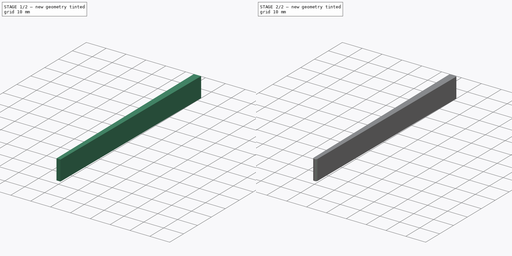
[diagram: build sequence overview — one tinted view per stage of 2, left to right]
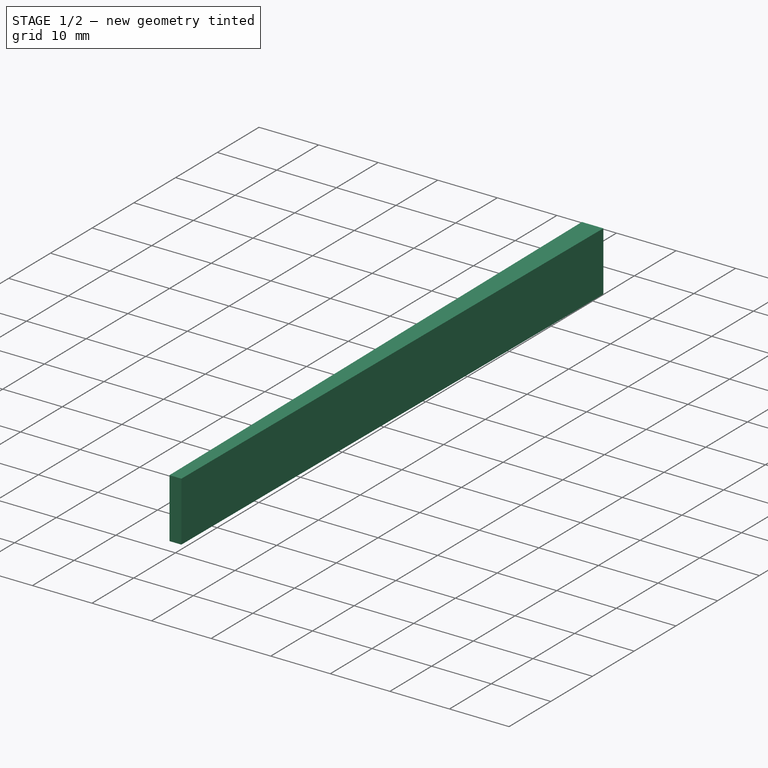
[diagram: stage 1 of 2 — iso view after this stage's code; geometry added in this stage tinted green]
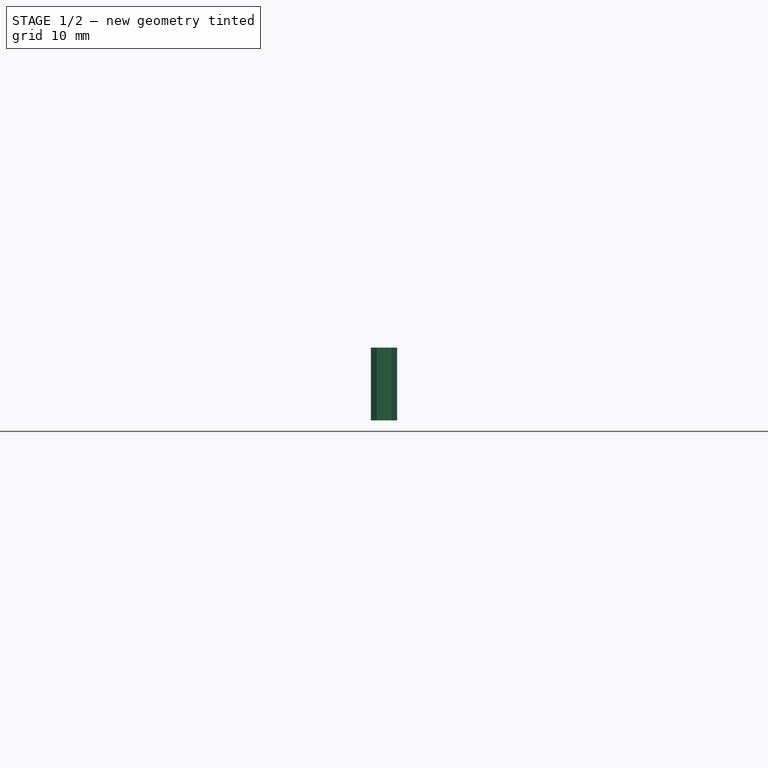
[diagram: stage 1 of 2 — front view after this stage's code; geometry added in this stage tinted green]
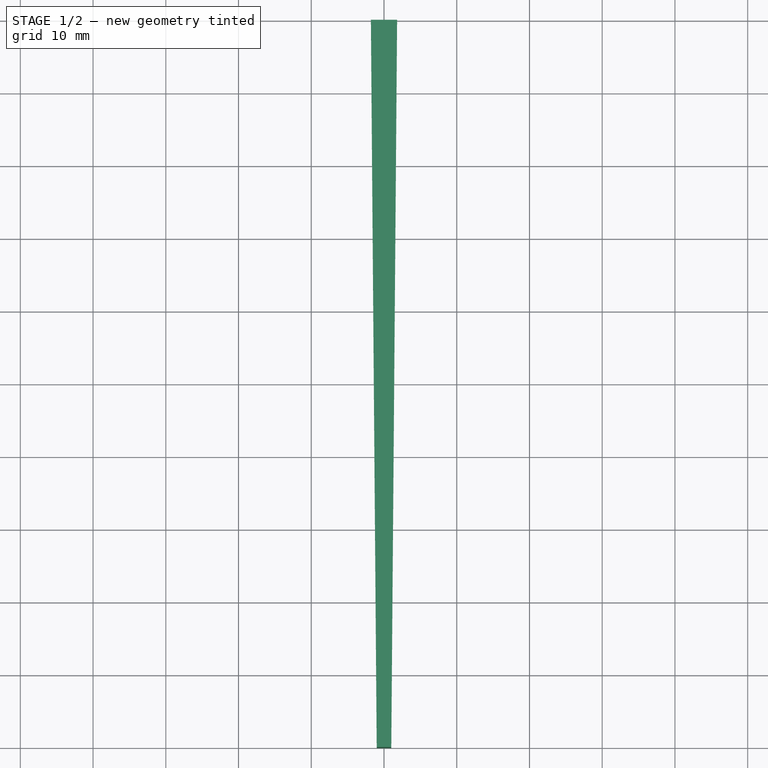
[diagram: stage 1 of 2 — top view after this stage's code; geometry added in this stage tinted green]
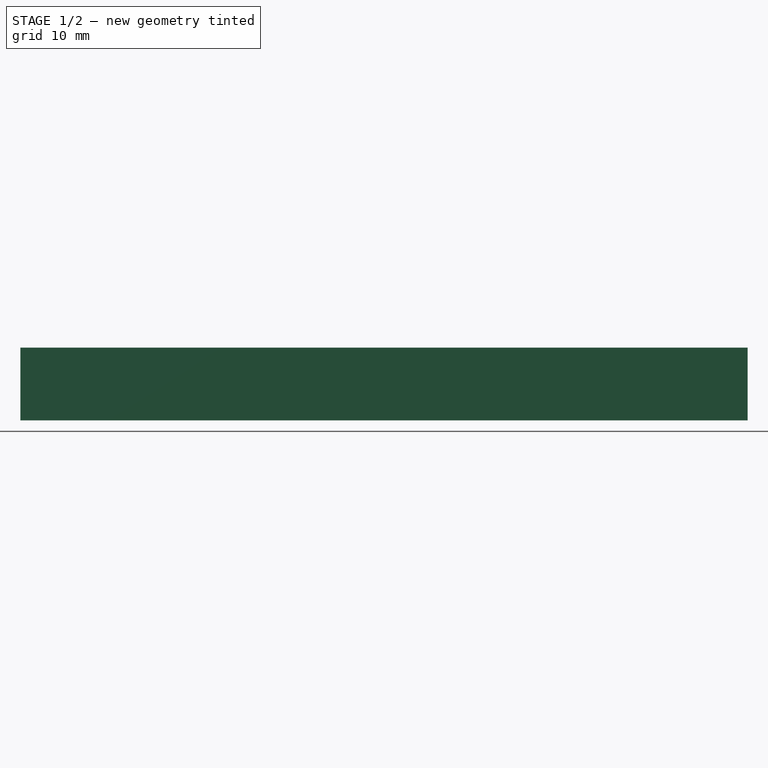
[diagram: stage 1 of 2 — right view after this stage's code; geometry added in this stage tinted green]
FCSTD DOCUMENT  (FreeCAD 0.18R)
Label: MicroSteppingTest
License: All rights reserved
LicenseURL: http://en.wikipedia.org/wiki/All_rights_reserved
objects: Sketcher::SketchObject×1, PartDesign::Pad×1, PartDesign::Fillet×1, PartDesign::Body×1, App::Part×1
note: 5 computed .brp shape members not serialized (recipe doc carries the construction recipe); baked Part::Feature solids carry a one-line shape summary decoded from their .brp

FEATURE [Sketcher::SketchObject] Sketch
  MapMode = 5
  Support = -> [XY_Plane001]
  expr: Constraints[4] = Constraints.TipWidth + 1.6mm
  sketch-geometry (4):
    g0: LineSegment StartX=-1 StartY=0 StartZ=0 EndX=-1.8 EndY=100 EndZ=0
    g1: LineSegment StartX=-1.8 StartY=100 StartZ=0 EndX=1.8 EndY=100 EndZ=0
    g2: LineSegment StartX=1.8 StartY=100 StartZ=0 EndX=1 EndY=0 EndZ=0
    g3: LineSegment StartX=-1 StartY=0 StartZ=0 EndX=1 EndY=0 EndZ=0
  constraints (10):
    c: Coincident(g0,g1)
    c: Coincident(g1,g2)
    c: Symmetric(g0,g1,g-2)
    c: DistanceY(g0,g0) = 100
    c: DistanceX(g1,g1) = 3.6
    c: Coincident(g3,g0)
    c: Coincident(g3,g2)
    c: Horizontal(g3)
    c: DistanceX(g3,g3) = 2  'TipWidth'
    c: Symmetric(g0,g2,g-1)
FEATURE [PartDesign::Pad] Pad
  Length = 10
  Length2 = 100
  Profile = -> Sketch
  Type = 0
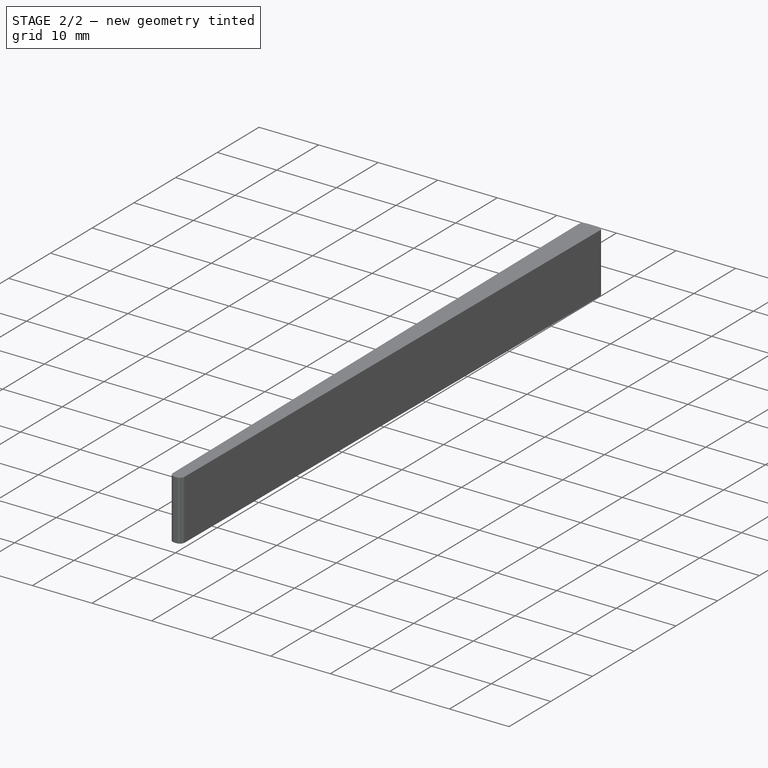
[diagram: stage 2 of 2 — iso view after this stage's code; geometry added in this stage tinted green]
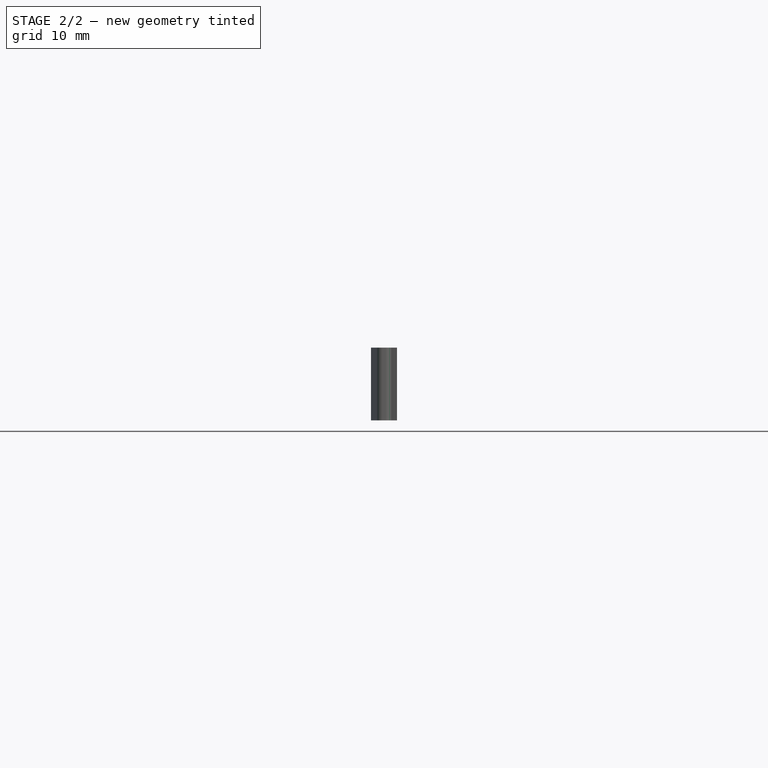
[diagram: stage 2 of 2 — front view after this stage's code; geometry added in this stage tinted green]
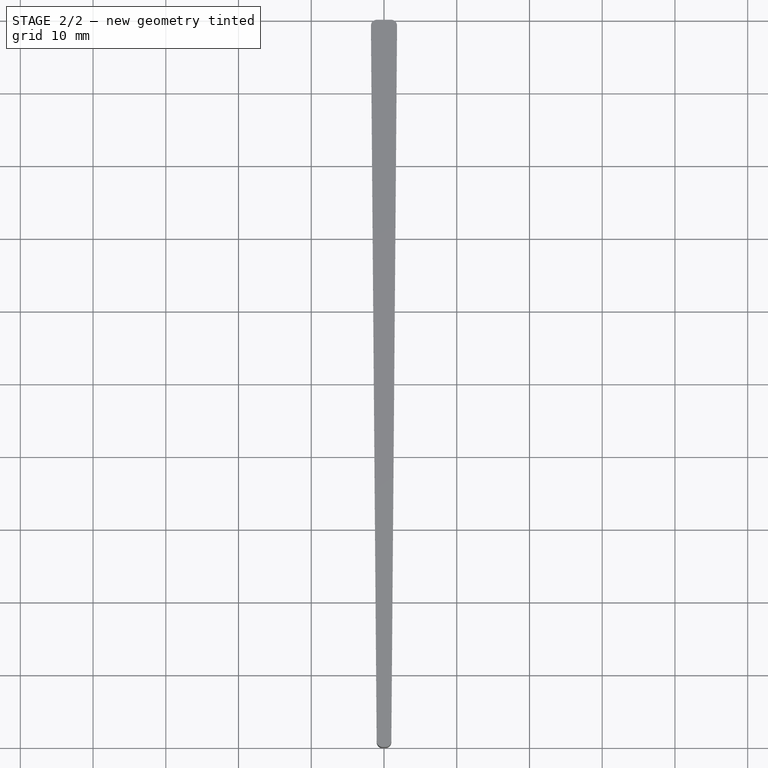
[diagram: stage 2 of 2 — top view after this stage's code; geometry added in this stage tinted green]
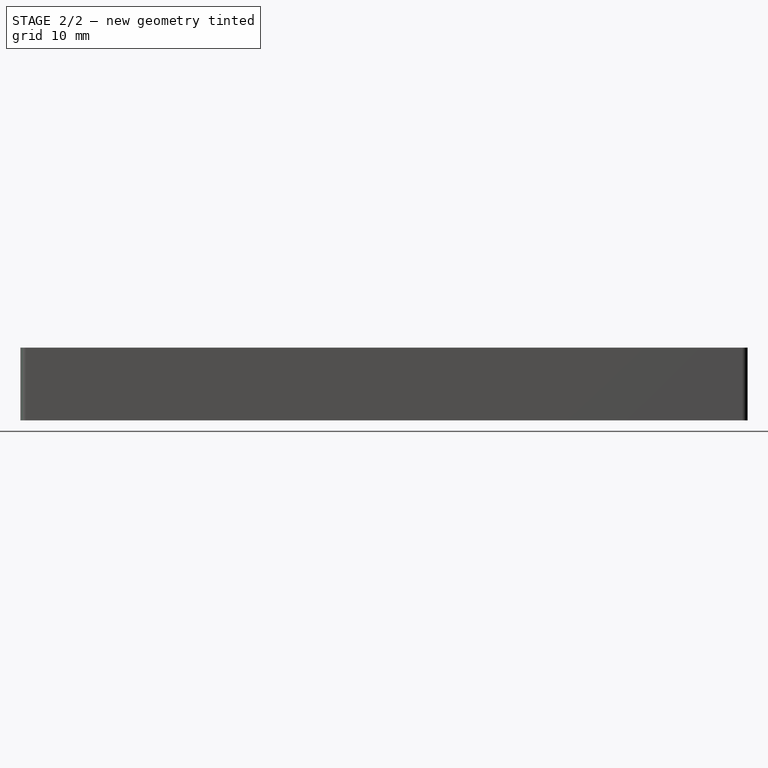
[diagram: stage 2 of 2 — right view after this stage's code; geometry added in this stage tinted green]
FEATURE [PartDesign::Fillet] Fillet
  Base = -> Pad [Edge2,Edge5,Edge1,Edge8]
  BaseFeature = -> Pad
  Radius = 0.8
FEATURE [PartDesign::Body] Body
  Group = -> [Sketch,Pad,Fillet]
  Origin = -> Origin001
  Tip = -> Fillet
FEATURE [App::Part] Part
  Group = -> [Body]
  Origin = -> Origin
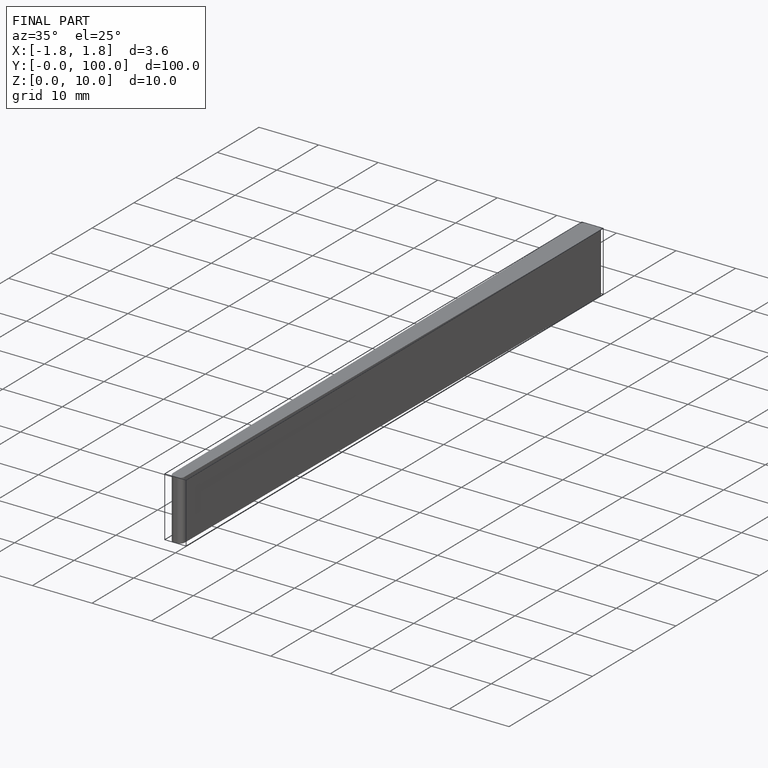
[diagram: finished part — iso view with bounding-box wireframe]
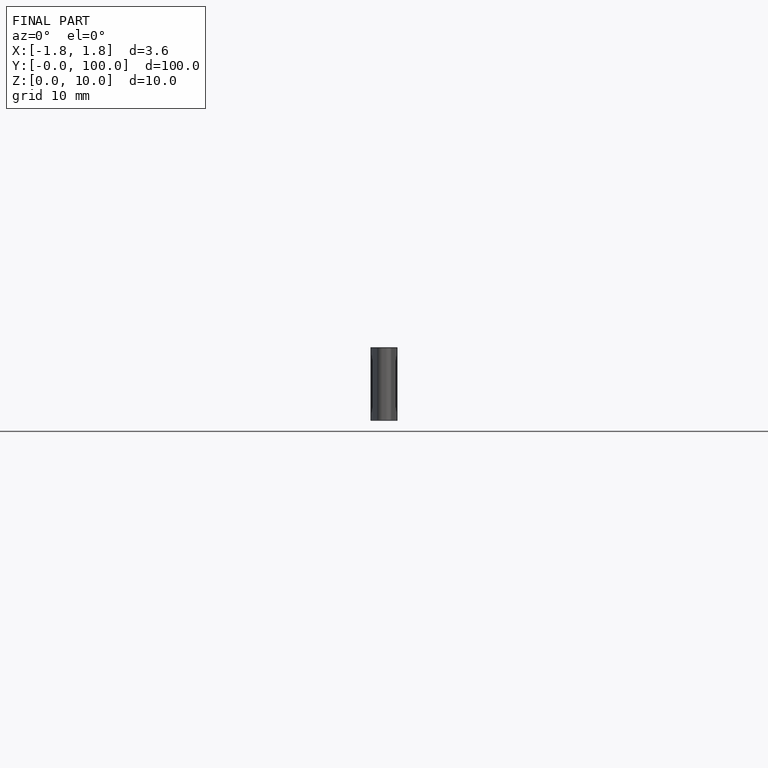
[diagram: finished part — front view with bounding-box wireframe]
